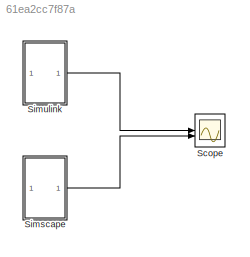
MODEL slx_61ea2cc7f87a
KIND model
CONFIG AbsTol = auto
CONFIG EnableMultiTasking = off
CONFIG FixedStep = auto
CONFIG MaxStep = 0.00001
CONFIG MinStep = auto
CONFIG RelTol = 1e-3
CONFIG SampleTimeConstraint = Unconstrained
CONFIG SolverName = VariableStepAuto
CONFIG StartTime = 0.0
CONFIG StopTime = 0.01
BLOCK [Scope] Scope
  Floating = off
  NumInputPorts = 2
  ScopeSpecificationString = Simulink.scopes.TimeScopeBlockCfg('CurrentConfiguration', extmgr.ConfigurationSet(extmgr.Configuration('Core','General UI',true),extmgr.Configuration('Core','Source UI',true),extmgr.Configuration('Sources','WiredSimulink',true,'DataLoggingVariableName','ScopeData2'),extmgr.Configuration('Visuals','Time Domain',true,'SerializedDisplays',{struct('MinYLimReal','-0.0000009','MaxYLimReal','0.0000021','...<+2269ch>
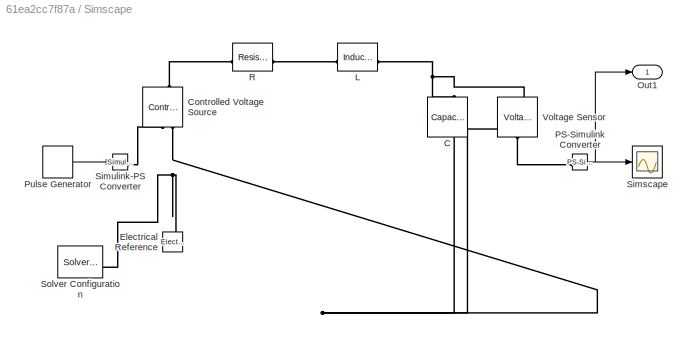
BLOCK [SubSystem] Simscape
BLOCK [Reference] Simscape/C  REF=fl_lib/Electrical/Electrical Elements/Capacitor
  NameLocation = left
  SourceBlock = fl_lib/Electrical/Electrical Elements/Capacitor
  SourceType = Capacitor
BLOCK [Reference] Simscape/Controlled Voltage Source  REF=fl_lib/Electrical/Electrical Sources/Controlled Voltage
Source
  NameLocation = right
  SourceBlock = fl_lib/Electrical/Electrical Sources/Controlled Voltage\nSource
  SourceType = Controlled Voltage\nSource
BLOCK [Reference] Simscape/Electrical Reference  REF=fl_lib/Electrical/Electrical Elements/Electrical Reference
  NameLocation = right
  SourceBlock = fl_lib/Electrical/Electrical Elements/Electrical Reference
  SourceType = Electrical Reference
BLOCK [Reference] Simscape/L  REF=fl_lib/Electrical/Electrical Elements/Inductor
  SourceBlock = fl_lib/Electrical/Electrical Elements/Inductor
  SourceType = Inductor
BLOCK [Outport] Simscape/Out1
BLOCK [Reference] Simscape/PS-Simulink Converter  REF=nesl_utility/PS-Simulink
Converter
  SourceBlock = nesl_utility/PS-Simulink\nConverter
  SourceType = PS-Simulink\nConverter
BLOCK [DiscretePulseGenerator] Simscape/Pulse Generator
  Amplitude = 12
  Period = 0.002
  PulseType = Time based
  PulseWidth = 50
BLOCK [Reference] Simscape/R  REF=fl_lib/Electrical/Electrical Elements/Resistor
  SourceBlock = fl_lib/Electrical/Electrical Elements/Resistor
  SourceType = Resistor
BLOCK [Scope] Simscape/Simscape
  Floating = off
  NumInputPorts = 1
  ScopeSpecificationString = Simulink.scopes.TimeScopeBlockCfg('CurrentConfiguration', extmgr.ConfigurationSet(extmgr.Configuration('Core','General UI',true),extmgr.Configuration('Core','Source UI',true),extmgr.Configuration('Sources','WiredSimulink',true,'DataLoggingVariableName','ScopeData1'),extmgr.Configuration('Visuals','Time Domain',true,'SerializedDisplays',{struct('MinYLimReal','-9.08448','MaxYLimReal','21.08448','YLa...<+1525ch>
BLOCK [Reference] Simscape/Simulink-PS Converter  REF=nesl_utility/Simulink-PS
Converter
  SourceBlock = nesl_utility/Simulink-PS\nConverter
  SourceType = Simulink-PS\nConverter
BLOCK [Reference] Simscape/Solver Configuration  REF=nesl_utility/Solver
Configuration
  SourceBlock = nesl_utility/Solver\nConfiguration
  SourceType = Solver\nConfiguration
BLOCK [Reference] Simscape/Voltage Sensor  REF=fl_lib/Electrical/Electrical Sensors/Voltage Sensor
  NameLocation = left
  SourceBlock = fl_lib/Electrical/Electrical Sensors/Voltage Sensor
  SourceType = Voltage Sensor
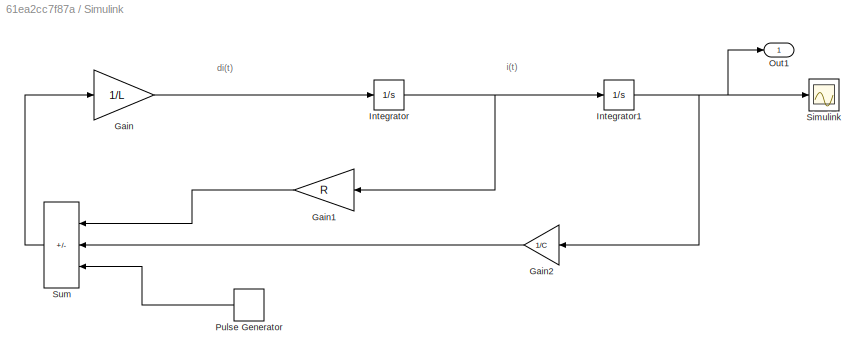
BLOCK [SubSystem] Simulink
BLOCK [Gain] Simulink/Gain
  Gain = 1/L
BLOCK [Gain] Simulink/Gain1
  Gain = R
  NameLocation = top
BLOCK [Gain] Simulink/Gain2
  Gain = 1/C
  NameLocation = top
BLOCK [Integrator] Simulink/Integrator
BLOCK [Integrator] Simulink/Integrator1
BLOCK [Outport] Simulink/Out1
BLOCK [DiscretePulseGenerator] Simulink/Pulse Generator
  Amplitude = 12
  NameLocation = top
  Period = 0.002
  PulseType = Time based
  PulseWidth = 50
BLOCK [Scope] Simulink/Simulink
  Floating = off
  NumInputPorts = 1
  ScopeSpecificationString = Simulink.scopes.TimeScopeBlockCfg('CurrentConfiguration', extmgr.ConfigurationSet(extmgr.Configuration('Core','General UI',true),extmgr.Configuration('Core','Source UI',true),extmgr.Configuration('Sources','WiredSimulink',true),extmgr.Configuration('Visuals','Time Domain',true,'SerializedDisplays',{struct('MinYLimReal','-0.0000009','MaxYLimReal','0.0000021','YLabelReal','','MinYLimMag','0.0000000'...<+1466ch>
BLOCK [Sum] Simulink/Sum
  IconShape = rectangular
  Inputs = --+
  NameLocation = top
ANNOTATION Simulink: i(t)
ANNOTATION Simulink: di(t)
NET Simscape/PS-Simulink Converter:1 -> Simscape/Out1:1, Simscape/Simscape:1
LINE Simscape/Pulse Generator:1 -> Simscape/Simulink-PS Converter:1
LINE Simscape:1 -> Scope:2
LINE Simulink/Gain1:1 -> Simulink/Sum:1
LINE Simulink/Gain2:1 -> Simulink/Sum:2
LINE Simulink/Gain:1 -> Simulink/Integrator:1
NET Simulink/Integrator1:1 -> Simulink/Gain2:1, Simulink/Out1:1, Simulink/Simulink:1
NET Simulink/Integrator:1 -> Simulink/Gain1:1, Simulink/Integrator1:1
LINE Simulink/Pulse Generator:1 -> Simulink/Sum:3
LINE Simulink/Sum:1 -> Simulink/Gain:1
LINE Simulink:1 -> Scope:1
PNET net1: Simscape/C:LConn1 -- Simscape/L:RConn1 -- Simscape/Voltage Sensor:LConn1
PNET net2: Simscape/C:RConn1 -- Simscape/Controlled Voltage Source:RConn2 -- Simscape/Electrical Reference:LConn1 -- Simscape/Solver Configuration:RConn1 -- Simscape/Voltage Sensor:RConn2
PLINE Simscape/Controlled Voltage Source:LConn1 -- Simscape/R:LConn1
PLINE Simscape/Controlled Voltage Source:RConn1 -- Simscape/Simulink-PS Converter:RConn1
PLINE Simscape/L:LConn1 -- Simscape/R:RConn1
PLINE Simscape/PS-Simulink Converter:LConn1 -- Simscape/Voltage Sensor:RConn1
note: NET lines group one-source signal fan-out (src -> all destinations, sorted); 1:1 wires keep LINE; PNET lines group multi-terminal physical nets as a canonical sorted terminal list (undirected conserving connections); 2-terminal nets keep the pairwise PLINE form
